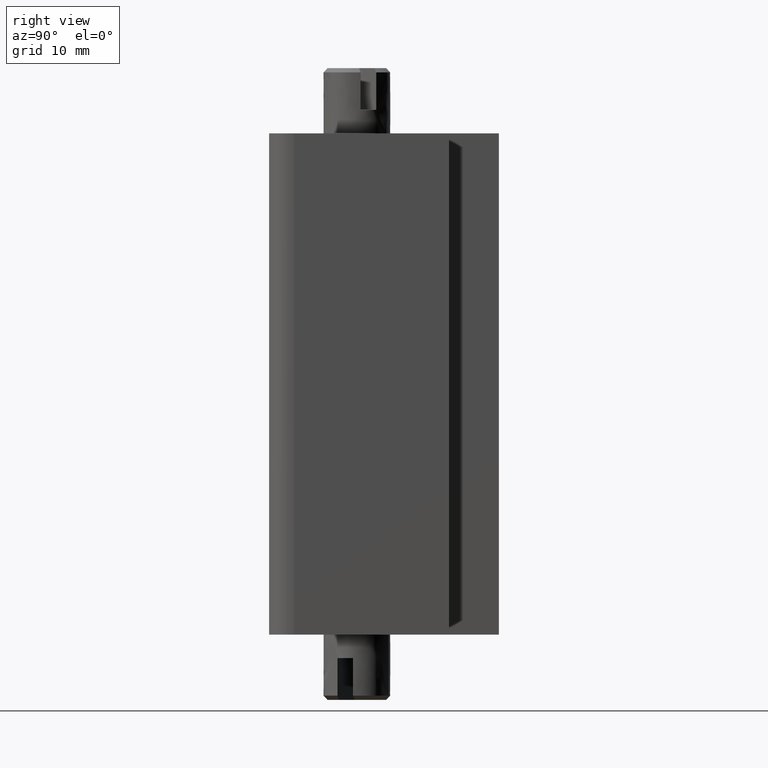
[diagram: clean part render]
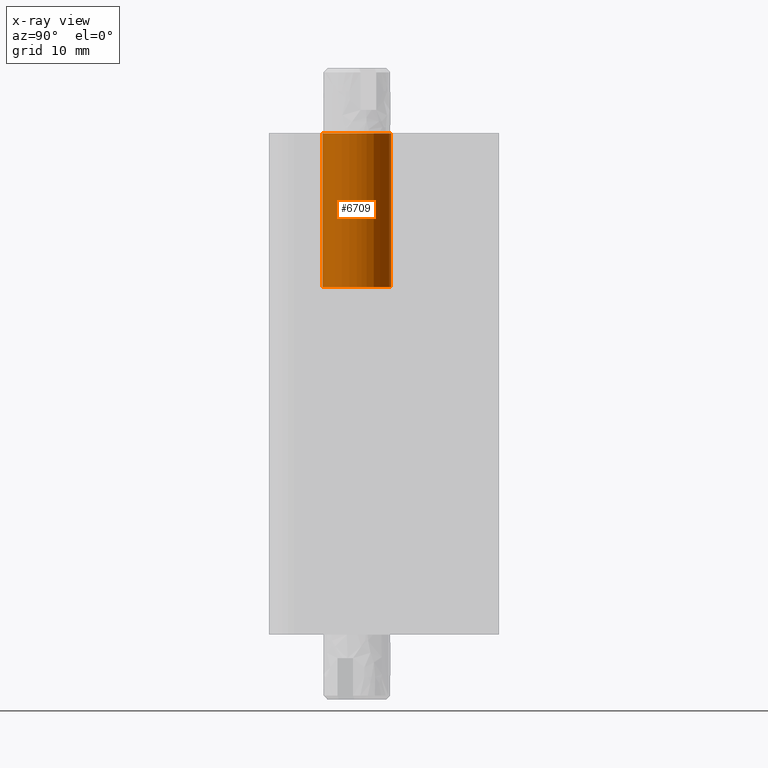
[diagram: x-ray — body ghosted, one internal face saturated and labeled with its STEP entity id]
A machine part, right view, then the same camera in x-ray: the body is ghosted and one INTERNAL B-rep face — a face not visible from any outside direction — is saturated and labeled: STEP entity #6709.
In plain terms, the highlighted face is a freeform B-spline surface patch.
Its self-contained STEP definition (entity closure, byte-faithful):
#6611=CARTESIAN_POINT('',(0.321682292484167,-4.087361068305828,48.940002457387692));
#6612=CARTESIAN_POINT('',(4.409043360789990,-3.765678775821662,48.940002457387678));
#6613=CARTESIAN_POINT('',(4.087361068305824,0.321682292484163,48.940002457387692));
#6614=CARTESIAN_POINT('',(3.765678775821657,4.409043360789986,48.940002457387678));
#6615=CARTESIAN_POINT('',(-0.321682292484167,4.087361068305819,48.940002457387692));
#6616=CARTESIAN_POINT('',(0.321682292484167,-4.087361068305835,68.271502457387697));
#6617=CARTESIAN_POINT('',(4.409043360789990,-3.765678775821669,68.271502457387697));
#6618=CARTESIAN_POINT('',(4.087361068305824,0.321682292484155,68.271502457387697));
#6619=CARTESIAN_POINT('',(3.765678775821657,4.409043360789979,68.271502457387697));
#6620=CARTESIAN_POINT('',(-0.321682292484167,4.087361068305812,68.271502457387697));
#6628=(BOUNDED_SURFACE()B_SPLINE_SURFACE(2,1,((#6611,#6616),(#6612,#6617),(#6613,#6618),(#6614,#6619),(#6615,#6620)),.UNSPECIFIED.,.F.,.F.,.U.)B_SPLINE_SURFACE_WITH_KNOTS((3,2,3),(2,2),(0.0,6.793102422918758,13.586204845837520),(0.0,19.331500000000009),.UNSPECIFIED.)GEOMETRIC_REPRESENTATION_ITEM()RATIONAL_B_SPLINE_SURFACE(((1.0,1.0),(0.707106781186548,0.707106781186548),(1.0,1.0),(0.707106781186548,0.707106781186548),(1.0,1.0)))REPRESENTATION_ITEM('')SURFACE());
#6629=CARTESIAN_POINT('',(4.100000000000001,-4.261631E-015,49.400002457387693));
#6630=VERTEX_POINT('',#6629);
#6631=CARTESIAN_POINT('',(0.321682292670233,-4.087361068291186,49.400002457387693));
#6632=VERTEX_POINT('',#6631);
#6633=CARTESIAN_POINT('',(4.100000000000001,-4.261631E-015,49.400002457387693));
#6634=CARTESIAN_POINT('',(4.100000000000000,-3.790001015452527,49.400002457387693));
#6635=CARTESIAN_POINT('',(0.321682292670233,-4.087361068291185,49.400002457387693));
#6643=(BOUNDED_CURVE()B_SPLINE_CURVE(2,(#6633,#6634,#6635),.UNSPECIFIED.,.F.,.U.)B_SPLINE_CURVE_WITH_KNOTS((3,3),(0.0,0.236331300617160),.UNSPECIFIED.)CURVE()GEOMETRIC_REPRESENTATION_ITEM()RATIONAL_B_SPLINE_CURVE((1.0,0.723120658623482,0.969723356139244))REPRESENTATION_ITEM(''));
#6644=EDGE_CURVE('',#6630,#6632,#6643,.T.);
#6645=ORIENTED_EDGE('',*,*,#6644,.T.);
#6646=CARTESIAN_POINT('',(0.321682292670233,-4.087361068291192,67.800002457387706));
#6647=VERTEX_POINT('',#6646);
#6648=CARTESIAN_POINT('',(0.321682292670233,-4.087361068291186,49.400002457387693));
#6649=CARTESIAN_POINT('',(0.321682292670233,-4.087361068291192,67.800002457387706));
#6650=QUASI_UNIFORM_CURVE('',1,(#6648,#6649),.UNSPECIFIED.,.F.,.U.);
#6651=EDGE_CURVE('',#6632,#6647,#6650,.T.);
#6652=ORIENTED_EDGE('',*,*,#6651,.T.);
#6653=CARTESIAN_POINT('',(4.100000000000001,-1.102146E-014,67.800002457387706));
#6654=VERTEX_POINT('',#6653);
#6655=CARTESIAN_POINT('',(4.100000000000001,-1.102146E-014,67.800002457387706));
#6656=CARTESIAN_POINT('',(4.100000000000001,-3.790001015452532,67.800002457387691));
#6657=CARTESIAN_POINT('',(0.321682292670233,-4.087361068291193,67.800002457387706));
#6665=(BOUNDED_CURVE()B_SPLINE_CURVE(2,(#6655,#6656,#6657),.UNSPECIFIED.,.F.,.U.)B_SPLINE_CURVE_WITH_KNOTS((3,3),(0.0,0.236331300617160),.UNSPECIFIED.)CURVE()GEOMETRIC_REPRESENTATION_ITEM()RATIONAL_B_SPLINE_CURVE((1.0,0.723120658623482,0.969723356139244))REPRESENTATION_ITEM(''));
#6666=EDGE_CURVE('',#6654,#6647,#6665,.T.);
#6667=ORIENTED_EDGE('',*,*,#6666,.F.);
#6668=CARTESIAN_POINT('',(-0.321682292670233,4.087361068291170,67.800002457387706));
#6669=VERTEX_POINT('',#6668);
#6670=CARTESIAN_POINT('',(-0.321682292670233,4.087361068291170,67.800002457387706));
#6671=CARTESIAN_POINT('',(-0.161089438918377,4.099999999999989,67.800002457387691));
#6672=CARTESIAN_POINT('',(0.0,4.099999999999989,67.800002457387706));
#6673=CARTESIAN_POINT('',(4.100000000000001,4.099999999999989,67.800002457387706));
#6674=CARTESIAN_POINT('',(4.100000000000001,-1.102146E-014,67.800002457387706));
#6682=(BOUNDED_CURVE()B_SPLINE_CURVE(2,(#6670,#6671,#6672,#6673,#6674),.UNSPECIFIED.,.F.,.U.)B_SPLINE_CURVE_WITH_KNOTS((3,2,3),(0.736331300617159,0.750000000000000,1.0),.UNSPECIFIED.)CURVE()GEOMETRIC_REPRESENTATION_ITEM()RATIONAL_B_SPLINE_CURVE((0.969723356139244,0.983986122563066,1.0,0.707106781186547,1.0))REPRESENTATION_ITEM(''));
#6683=EDGE_CURVE('',#6669,#6654,#6682,.T.);
#6684=ORIENTED_EDGE('',*,*,#6683,.F.);
#6685=CARTESIAN_POINT('',(-0.321682292670232,4.087361068291177,49.400002457387693));
#6686=VERTEX_POINT('',#6685);
#6687=CARTESIAN_POINT('',(-0.321682292670232,4.087361068291177,49.400002457387693));
#6688=CARTESIAN_POINT('',(-0.321682292670233,4.087361068291170,67.800002457387706));
#6689=QUASI_UNIFORM_CURVE('',1,(#6687,#6688),.UNSPECIFIED.,.F.,.U.);
#6690=EDGE_CURVE('',#6686,#6669,#6689,.T.);
#6691=ORIENTED_EDGE('',*,*,#6690,.F.);
#6692=CARTESIAN_POINT('',(-0.321682292670232,4.087361068291177,49.400002457387686));
#6693=CARTESIAN_POINT('',(-0.161089438918376,4.099999999999997,49.400002457387693));
#6694=CARTESIAN_POINT('',(0.0,4.099999999999996,49.400002457387693));
#6695=CARTESIAN_POINT('',(4.100000000000001,4.099999999999996,49.400002457387700));
#6696=CARTESIAN_POINT('',(4.100000000000001,-4.261631E-015,49.400002457387693));
#6704=(BOUNDED_CURVE()B_SPLINE_CURVE(2,(#6692,#6693,#6694,#6695,#6696),.UNSPECIFIED.,.F.,.U.)B_SPLINE_CURVE_WITH_KNOTS((3,2,3),(0.736331300617160,0.750000000000000,1.0),.UNSPECIFIED.)CURVE()GEOMETRIC_REPRESENTATION_ITEM()RATIONAL_B_SPLINE_CURVE((0.969723356139244,0.983986122563066,1.0,0.707106781186547,1.0))REPRESENTATION_ITEM(''));
#6705=EDGE_CURVE('',#6686,#6630,#6704,.T.);
#6706=ORIENTED_EDGE('',*,*,#6705,.T.);
#6707=EDGE_LOOP('',(#6645,#6652,#6667,#6684,#6691,#6706));
#6708=FACE_OUTER_BOUND('',#6707,.T.);
#6709=ADVANCED_FACE('',(#6708),#6628,.F.);